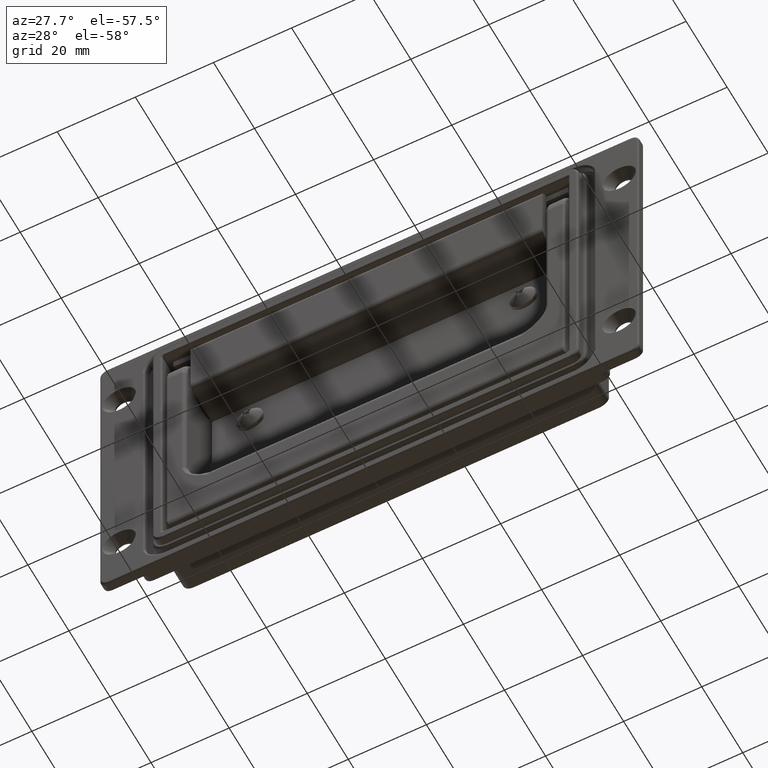
[diagram: clean part render]
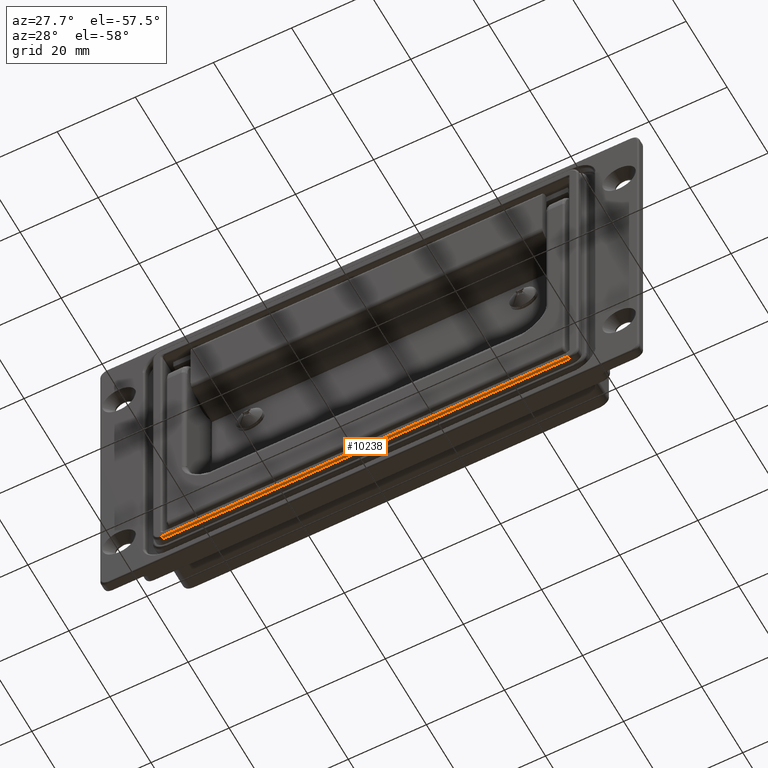
[diagram: same view with one face highlighted and labeled with its STEP entity id]
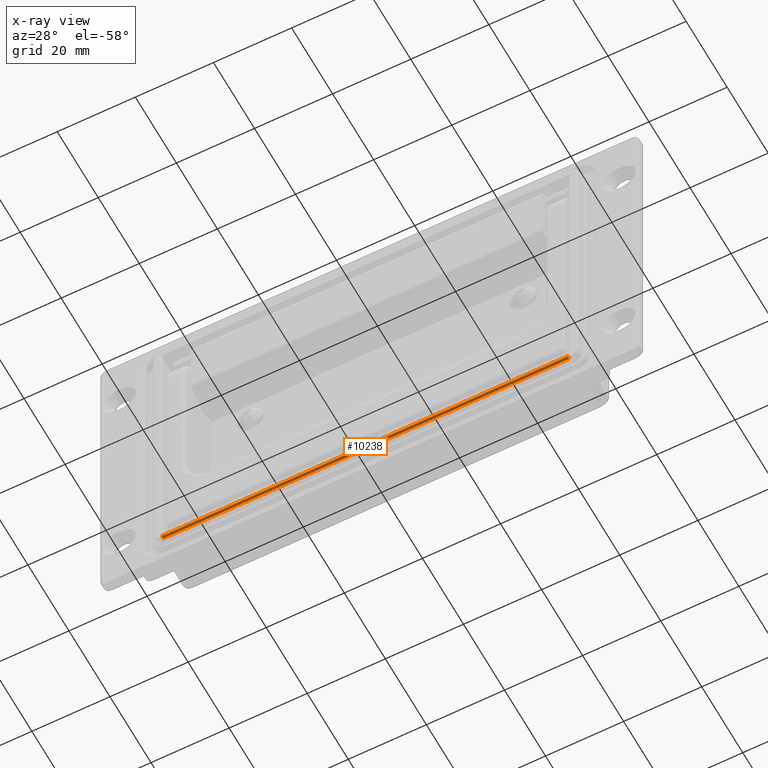
[diagram: x-ray of the same camera — body ghosted, the highlighted face saturated]
A machine part, auxiliary view. The second image highlights one B-rep face of the part: STEP entity #10238.
The next image is the same camera in x-ray: the body ghosted, the highlighted face saturated — about 0% of this face is hidden behind the body in this view.
In plain terms, the highlighted face is a freeform B-spline surface patch.
Its self-contained STEP definition (entity closure, byte-faithful):
#10083=CARTESIAN_POINT('',(-52.0,-7.500000000000000,-65.699999999999989));
#10084=VERTEX_POINT('',#10083);
#10085=CARTESIAN_POINT('',(-52.0,-7.999999999999910,-65.199999999999989));
#10086=VERTEX_POINT('',#10085);
#10087=CARTESIAN_POINT('',(-52.0,-7.500000000000000,-65.699999999999989));
#10088=CARTESIAN_POINT('',(-51.999999999999993,-7.999999999999911,-65.699999999999903));
#10089=CARTESIAN_POINT('',(-52.0,-7.999999999999910,-65.199999999999989));
#10097=(BOUNDED_CURVE()B_SPLINE_CURVE(2,(#10087,#10088,#10089),.UNSPECIFIED.,.F.,.U.)CURVE()GEOMETRIC_REPRESENTATION_ITEM()QUASI_UNIFORM_CURVE()RATIONAL_B_SPLINE_CURVE((1.0,0.707106781186611,1.0))REPRESENTATION_ITEM(''));
#10098=EDGE_CURVE('',#10084,#10086,#10097,.T.);
#10194=CARTESIAN_POINT('',(54.600000000000001,-7.999980961531995,-65.195636732250804));
#10195=CARTESIAN_POINT('',(-54.665000000000013,-7.999980961531995,-65.195636732250804));
#10196=CARTESIAN_POINT('',(54.600000000000001,-8.004578886367364,-65.722506732532167));
#10197=CARTESIAN_POINT('',(-54.665000000000006,-8.004578886367364,-65.722506732532167));
#10198=CARTESIAN_POINT('',(54.600000000000001,-7.478190306317238,-65.699524110790904));
#10199=CARTESIAN_POINT('',(-54.665000000000013,-7.478190306317238,-65.699524110790904));
#10207=(BOUNDED_SURFACE()B_SPLINE_SURFACE(1,2,((#10194,#10196,#10198),(#10195,#10197,#10199)),.UNSPECIFIED.,.F.,.F.,.U.)B_SPLINE_SURFACE_WITH_KNOTS((2,2),(3,3),(0.0,109.265000000000000),(0.0,1.0),.UNSPECIFIED.)GEOMETRIC_REPRESENTATION_ITEM()RATIONAL_B_SPLINE_SURFACE(((1.0,0.688354575693754,1.0),(1.0,0.688354575693754,1.0)))REPRESENTATION_ITEM('')SURFACE());
#10208=CARTESIAN_POINT('',(52.0,-7.500000000000000,-65.699999999999989));
#10209=VERTEX_POINT('',#10208);
#10210=CARTESIAN_POINT('',(52.0,-7.999999999999910,-65.199999999999989));
#10211=VERTEX_POINT('',#10210);
#10212=CARTESIAN_POINT('',(52.0,-7.500000000000000,-65.699999999999989));
#10213=CARTESIAN_POINT('',(52.000000000000007,-8.0,-65.699999999999989));
#10214=CARTESIAN_POINT('',(52.0,-8.0,-65.199999999999989));
#10222=(BOUNDED_CURVE()B_SPLINE_CURVE(2,(#10212,#10213,#10214),.UNSPECIFIED.,.F.,.U.)CURVE()GEOMETRIC_REPRESENTATION_ITEM()QUASI_UNIFORM_CURVE()RATIONAL_B_SPLINE_CURVE((1.0,0.707106781186548,1.0))REPRESENTATION_ITEM(''));
#10223=EDGE_CURVE('',#10209,#10211,#10222,.T.);
#10224=ORIENTED_EDGE('',*,*,#10223,.T.);
#10225=CARTESIAN_POINT('',(-52.0,-7.999999999999910,-65.199999999999989));
#10226=CARTESIAN_POINT('',(52.0,-7.999999999999910,-65.199999999999989));
#10227=QUASI_UNIFORM_CURVE('',1,(#10225,#10226),.UNSPECIFIED.,.F.,.U.);
#10228=EDGE_CURVE('',#10086,#10211,#10227,.T.);
#10229=ORIENTED_EDGE('',*,*,#10228,.F.);
#10230=ORIENTED_EDGE('',*,*,#10098,.F.);
#10231=CARTESIAN_POINT('',(52.0,-7.500000000000000,-65.699999999999989));
#10232=CARTESIAN_POINT('',(-52.0,-7.500000000000000,-65.699999999999989));
#10233=QUASI_UNIFORM_CURVE('',1,(#10231,#10232),.UNSPECIFIED.,.F.,.U.);
#10234=EDGE_CURVE('',#10209,#10084,#10233,.T.);
#10235=ORIENTED_EDGE('',*,*,#10234,.F.);
#10236=EDGE_LOOP('',(#10224,#10229,#10230,#10235));
#10237=FACE_OUTER_BOUND('',#10236,.T.);
#10238=ADVANCED_FACE('',(#10237),#10207,.T.);